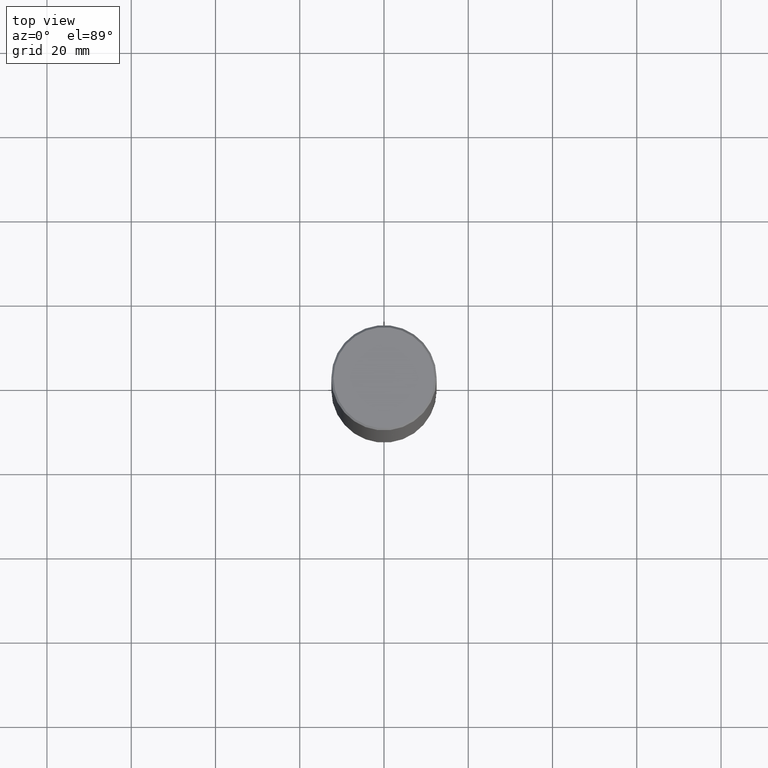
[diagram: clean part render]
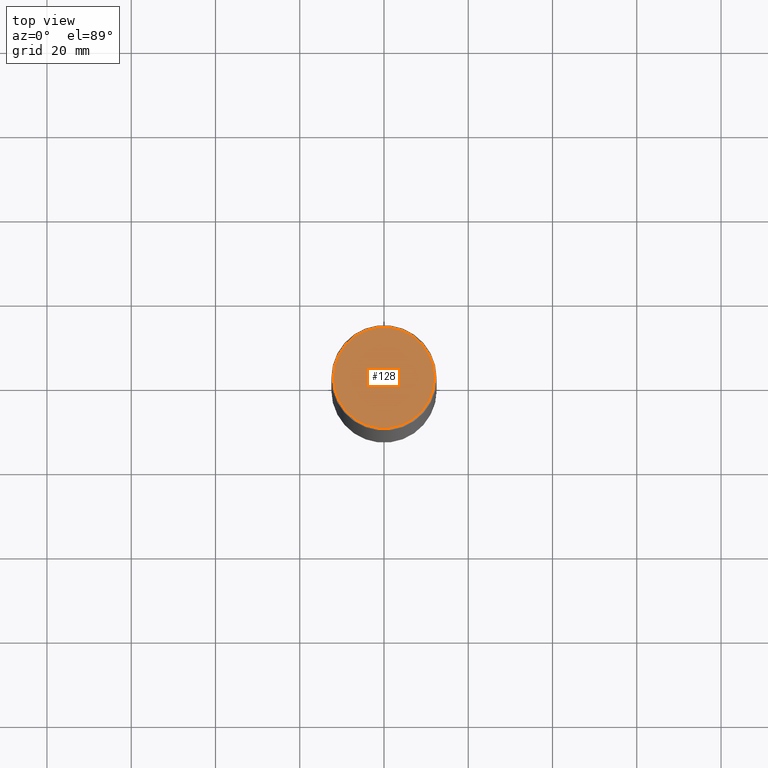
[diagram: same view with one face highlighted and labeled with its STEP entity id]
A machine part, top view. The second image highlights one B-rep face of the part: STEP entity #128.
In plain terms, the highlighted planar face has unit normal (0, -0, -1).
Its self-contained STEP definition (entity closure, byte-faithful):
#2 = CARTESIAN_POINT ( 'NONE',  ( -6.889419334612450925E-45, 9.836264924510951028E-31, 2.817218243466271259E-16 ) ) ;
#44 = CIRCLE ( 'NONE', #184, 0.4721499999999997921 ) ;
#51 = CARTESIAN_POINT ( 'NONE',  ( -6.889419334612450925E-45, 9.836264924510951028E-31, 2.817218243466271259E-16 ) ) ;
#54 = DIRECTION ( 'NONE',  ( 1.000000000000000000, -6.982962677686265922E-15, 4.882029041999364017E-29 ) ) ;
#57 = EDGE_CURVE ( 'NONE', #384, #104, #44, .T. ) ;
#60 = DIRECTION ( 'NONE',  ( -1.000000000000000000, 6.982962677686265922E-15, -4.876176775795935793E-29 ) ) ;
#92 = ORIENTED_EDGE ( 'NONE', *, *, #284, .T. ) ;
#97 = CARTESIAN_POINT ( 'NONE',  ( 0.4721499999999997921, -3.342703923013974974E-15, 2.817218243466503973E-16 ) ) ;
#104 = VERTEX_POINT ( 'NONE', #97 ) ;
#128 = ADVANCED_FACE ( 'NONE', ( #226 ), #269, .F. ) ;
#160 = DIRECTION ( 'NONE',  ( -2.445468806185136597E-29, 3.491481338843145583E-15, 1.000000000000000000 ) ) ;
#178 = DIRECTION ( 'NONE',  ( -2.445468806185136597E-29, 3.491481338843145583E-15, 1.000000000000000000 ) ) ;
#184 = AXIS2_PLACEMENT_3D ( 'NONE', #2, #160, #264 ) ;
#189 = EDGE_LOOP ( 'NONE', ( #309, #92 ) ) ;
#200 = CIRCLE ( 'NONE', #266, 0.4721499999999997921 ) ;
#226 = FACE_OUTER_BOUND ( 'NONE', #189, .T. ) ;
#264 = DIRECTION ( 'NONE',  ( 1.000000000000000000, -6.982962677686265922E-15, 4.882029041999364017E-29 ) ) ;
#266 = AXIS2_PLACEMENT_3D ( 'NONE', #51, #178, #54 ) ;
#269 = PLANE ( 'NONE',  #343 ) ;
#284 = EDGE_CURVE ( 'NONE', #104, #384, #200, .T. ) ;
#309 = ORIENTED_EDGE ( 'NONE', *, *, #57, .T. ) ;
#343 = AXIS2_PLACEMENT_3D ( 'NONE', #352, #355, #60 ) ;
#352 = CARTESIAN_POINT ( 'NONE',  ( 3.297005828269569180E-15, 0.4721499999999997921, -1.507642001961476820E-15 ) ) ;
#355 = DIRECTION ( 'NONE',  ( 2.438088387897960049E-29, -3.491481338843145188E-15, -1.000000000000000000 ) ) ;
#363 = CARTESIAN_POINT ( 'NONE',  ( -0.4721499999999997921, 3.331920641658001618E-15, 2.817218243466039531E-16 ) ) ;
#384 = VERTEX_POINT ( 'NONE', #363 ) ;